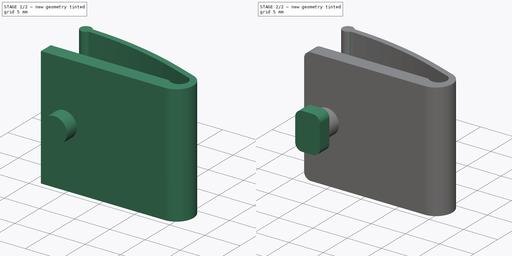
[diagram: build sequence overview — one tinted view per stage of 2, left to right]
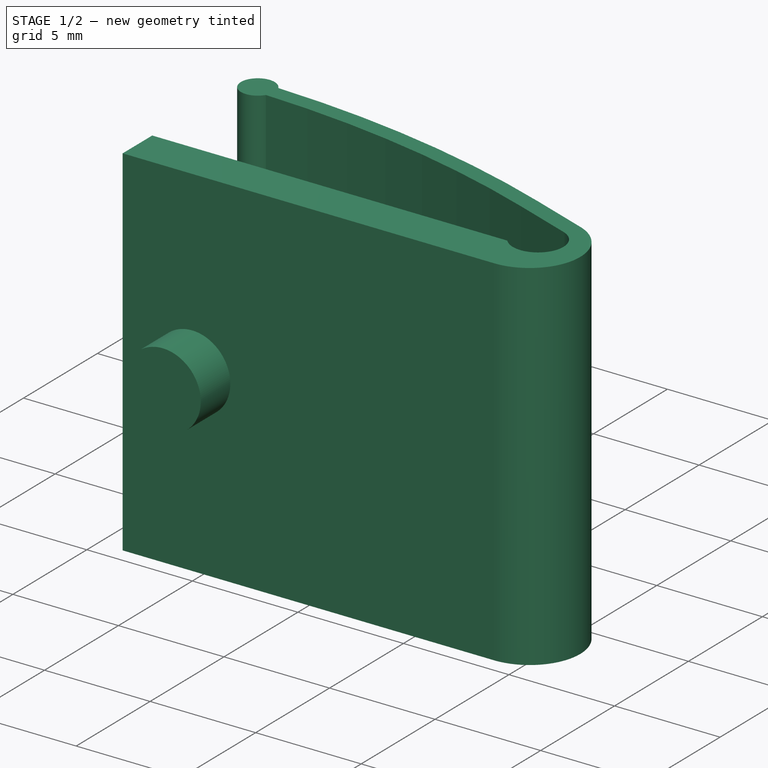
[diagram: stage 1 of 2 — iso view after this stage's code; geometry added in this stage tinted green]
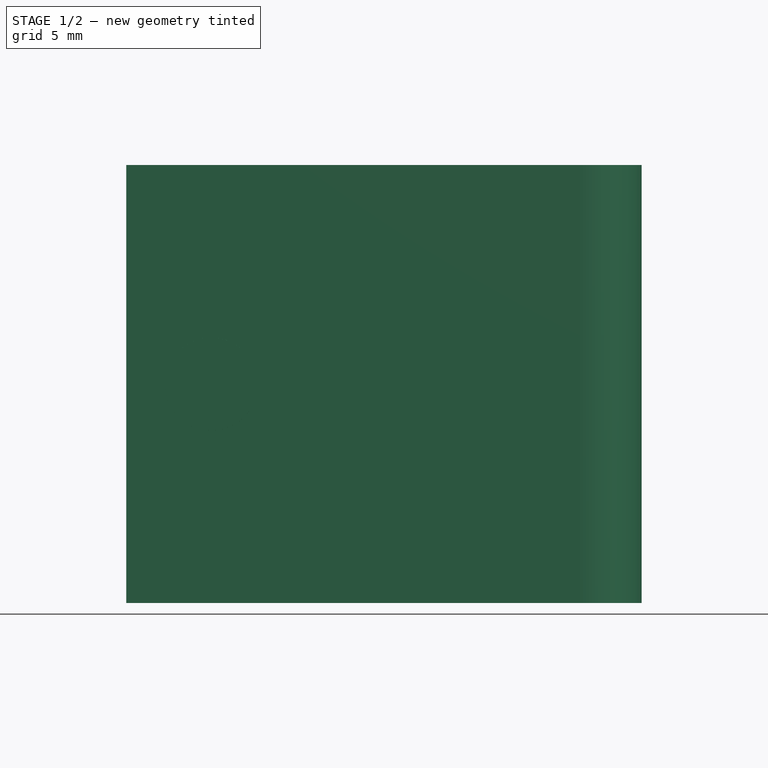
[diagram: stage 1 of 2 — front view after this stage's code; geometry added in this stage tinted green]
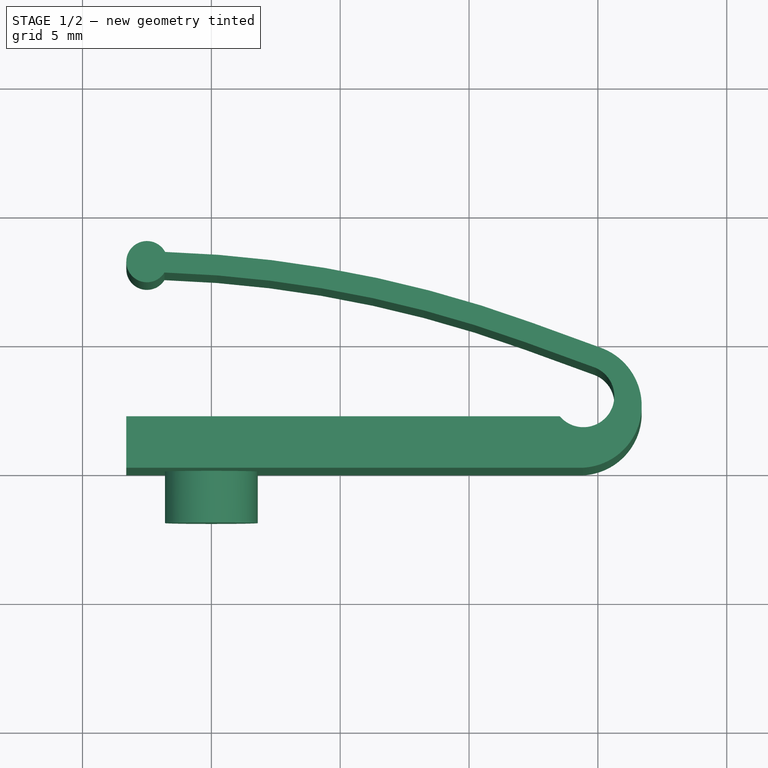
[diagram: stage 1 of 2 — top view after this stage's code; geometry added in this stage tinted green]
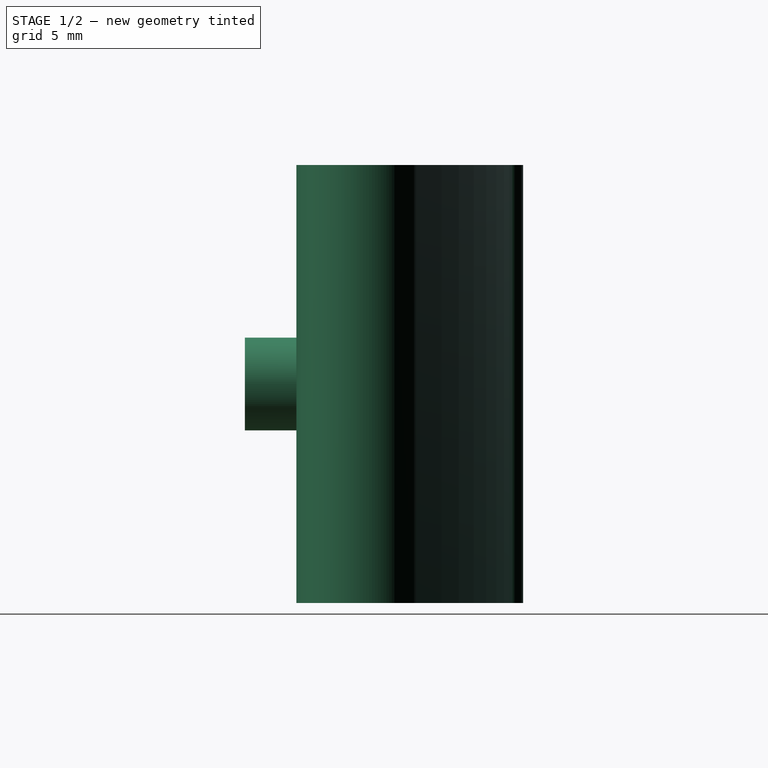
[diagram: stage 1 of 2 — right view after this stage's code; geometry added in this stage tinted green]
FCSTD DOCUMENT  (FreeCAD 0.20R28936 (Git))
Label: MosquitoNetLock
License: All rights reserved
LicenseURL: http://en.wikipedia.org/wiki/All_rights_reserved
objects: Sketcher::SketchObject×3, PartDesign::Pad×3, PartDesign::Fillet×1, PartDesign::Body×1
note: 12 computed .brp shape members not serialized (recipe doc carries the construction recipe); baked Part::Feature solids carry a one-line shape summary decoded from their .brp

FEATURE [Sketcher::SketchObject] Sketch
  FullyConstrained = true
  MapMode = 5
  Support = -> [XY_Plane]
  sketch-geometry (19):
    g0: LineSegment StartX=-3.3 StartY=2 StartZ=0 EndX=13.5214 EndY=2 EndZ=0
    g1: LineSegment StartX=-3.3 StartY=0 StartZ=0 EndX=-3.3 EndY=2 EndZ=0
    g2: ArcOfCircle CenterX=14.4368 CenterY=2.77588 CenterZ=0 NormalX=0 NormalY=0 NormalZ=1 AngleXU=0 Radius=1.2 StartAngle=3.84467 EndAngle=7.50492
    g3: LineSegment StartX=14.8472 StartY=3.90351 StartZ=0 EndX=12.1451 EndY=4.88701 EndZ=0
    g4: ArcOfCircle CenterX=14.3 CenterY=2.4 CenterZ=0 NormalX=0 NormalY=0 NormalZ=1 AngleXU=0 Radius=2.4 StartAngle=4.71239 EndAngle=7.50492
    g5: LineSegment StartX=15.1208 StartY=4.65526 StartZ=0 EndX=12.4186 EndY=5.63878 EndZ=0
    g6: LineSegment StartX=14.8472 StartY=3.90351 StartZ=0 EndX=15.1208 EndY=4.65526 EndZ=0
    g7: ArcOfCircle CenterX=-2.5 CenterY=8 CenterZ=0 NormalX=0 NormalY=0 NormalZ=1 AngleXU=0 Radius=0.8 StartAngle=0.49191 EndAngle=5.7279
    g8: LineSegment StartX=-2.5 StartY=8 StartZ=0 EndX=-1.80753 EndY=7.97805 EndZ=0
    g9: LineSegment StartX=-1.79485 StartY=8.37785 StartZ=0 EndX=-1.8202 EndY=7.57825 EndZ=0
    g10: LineSegment StartX=-3.3 StartY=2 StartZ=0 EndX=-3.3 EndY=8 EndZ=0
    g11: ArcOfCircle CenterX=-3.24582 CenterY=-37.3992 CenterZ=0 NormalX=0 NormalY=0 NormalZ=1 AngleXU=0 Radius=45.8 StartAngle=1.22173 EndAngle=1.53911
    g12: ArcOfCircle CenterX=-3.24582 CenterY=-37.3992 CenterZ=0 NormalX=0 NormalY=0 NormalZ=1 AngleXU=0 Radius=45 StartAngle=1.22173 EndAngle=1.53911
    g13: ArcOfCircle CenterX=-3.24582 CenterY=-37.3992 CenterZ=0 NormalX=0 NormalY=0 NormalZ=1 AngleXU=0 Radius=45.4 StartAngle=1.22173 EndAngle=1.53911
    g14: LineSegment StartX=14.3 StartY=2.4 StartZ=0 EndX=16.7 EndY=2.4 EndZ=0
    g15: LineSegment StartX=14.3 StartY=0 StartZ=0 EndX=0 EndY=0 EndZ=0
    g16: LineSegment StartX=0 StartY=0 StartZ=0 EndX=-3.3 EndY=0 EndZ=0
    g17: LineSegment StartX=14.3 StartY=2.4 StartZ=0 EndX=14.3 EndY=0 EndZ=0
    g18: LineSegment StartX=-2.5 StartY=8 StartZ=0 EndX=-1.79485 EndY=8.37785 EndZ=0
  constraints (50):
    c: Coincident(g16,g1)
    c: Coincident(g1,g0)
    c: Horizontal(g0)
    c: Vertical(g1)
    c: DistanceY(g1,g1) = 2
    c: Radius(g2) = 1.2
    c: Perpendicular(g3,g6)
    c: Distance(g6) = 0.8
    c: Coincident(g8,g7)
    c: Symmetric(g7,g7,g8)
    c: Coincident(g10,g0)
    c: Vertical(g10)
    c: Tangent(g10,g7) = 1.5708
    c: Coincident(g11,g7)
    c: Coincident(g12,g11)
    c: Coincident(g12,g7)
    c: Radius(g12) = 45
    c: Tangent(g3,g12) = -1.5708
    c: Tangent(g5,g11) = -1.5708
    c: Coincident(g9,g7)
    c: Coincident(g9,g7)
    c: Coincident(g13,g11)
    c: Coincident(g13,g8)
    c: Symmetric(g3,g5,g13)
    c: PointOnObject(g14,g4)
    c: Horizontal(g14)
    c: DistanceX(g16,g14) = 20
    c: Coincident(g15,g16)
    c: Horizontal(g15)
    c: Horizontal(g16)
    c: DistanceX(g16,g16) = 3.3
    c: Coincident(g15,g-1)  '__ANCHOR__'
    c: Coincident(g4,g15)
    c: Coincident(g4,g14)
    c: Coincident(g17,g4)
    c: Coincident(g17,g4)
    c: Vertical(g17)
    c: Coincident(g2,g0)
    c: Coincident(g6,g3)
    c: Coincident(g6,g2)
    c: Tangent(g5,g4) = -1.5708
    c: Coincident(g6,g4)
    c: Perpendicular(g13,g9)
    c: Tangent(g2,g3)
    c: DistanceY(g0,g10) = 6
    c: Angle(g3,g0) = 0.349066
    c: Radius(g4) = 2.4
    c: Coincident(g18,g7)
    c: Coincident(g18,g7)
    c: Equal(g18,g6)
FEATURE [Sketcher::SketchObject] Sketch001
  FullyConstrained = true
  MapMode = 5
  Placement = pos=(0,0,0) rot=(1,0,0;1.5708rad)
  Support = -> [XZ_Plane]
  sketch-geometry (1):
    g0: Circle CenterX=0 CenterY=0 CenterZ=0 NormalX=0 NormalY=0 NormalZ=1 AngleXU=0 Radius=1.8
  constraints (2):
    c: Coincident(g0,g-1)
    c: Radius(g0) = 1.8  'R'
FEATURE [PartDesign::Pad] Pad
  Direction = (0,0,1)
  Length = 17
  Length2 = 10
  Midplane = true
  Profile = -> Sketch
  ReferenceAxis = -> Sketch [N_Axis]
  Type = 0
FEATURE [PartDesign::Pad] Pad001
  BaseFeature = -> Pad
  Direction = (0,-1,-2e-16)
  Length = 2
  Length2 = 10
  Profile = -> Sketch001
  ReferenceAxis = -> Sketch001 [N_Axis]
  Refine = true
  Type = 0
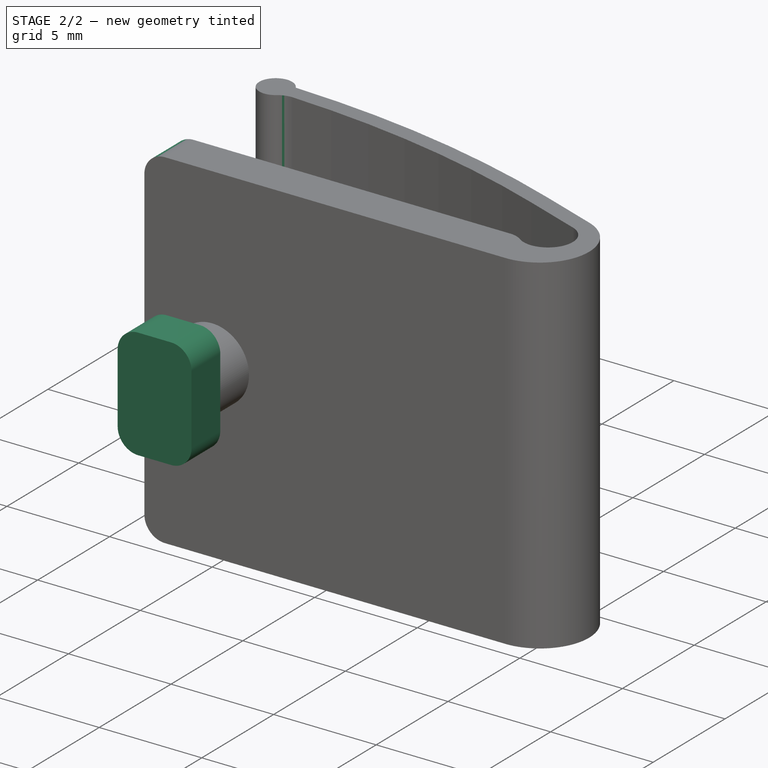
[diagram: stage 2 of 2 — iso view after this stage's code; geometry added in this stage tinted green]
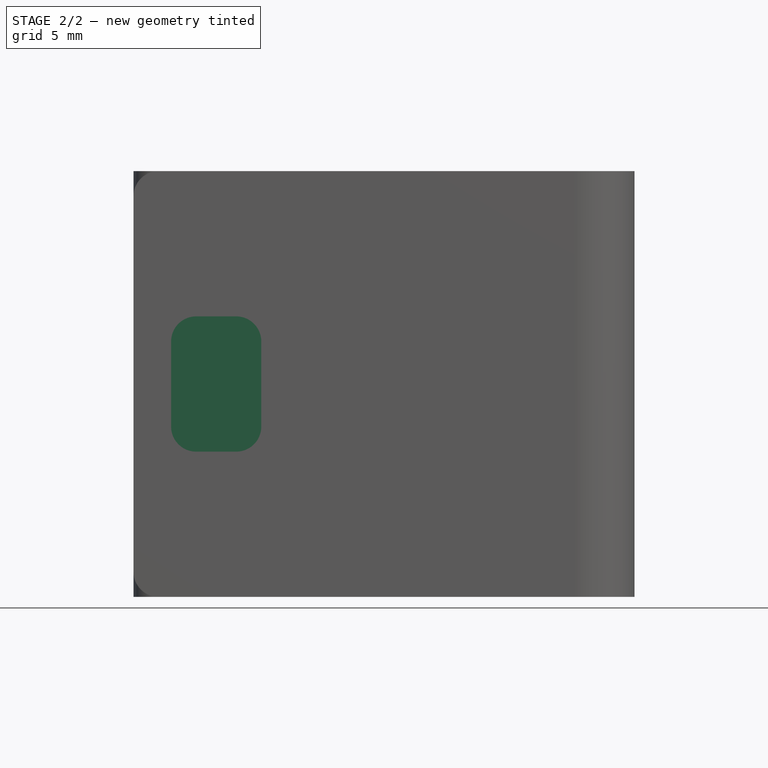
[diagram: stage 2 of 2 — front view after this stage's code; geometry added in this stage tinted green]
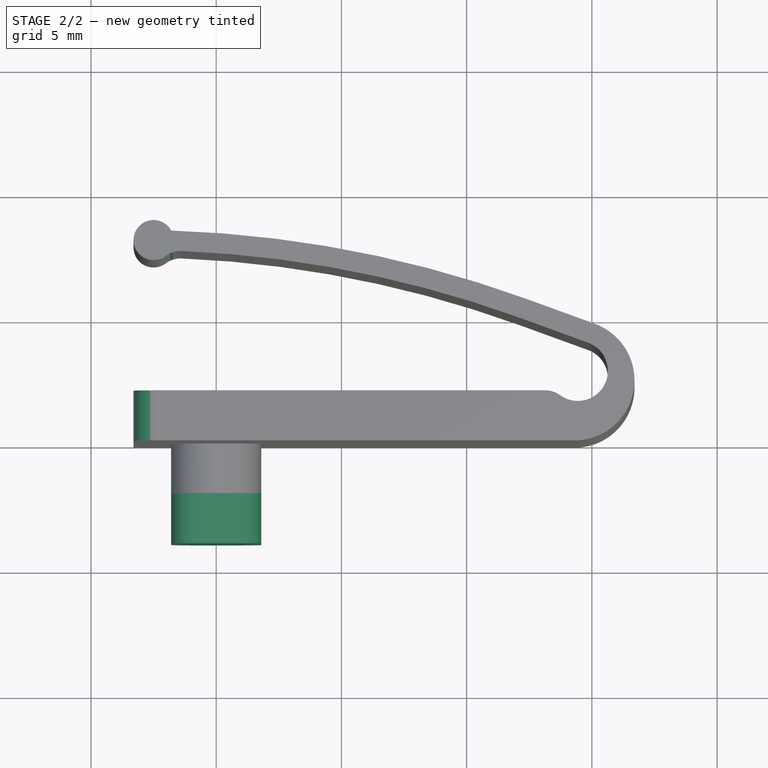
[diagram: stage 2 of 2 — top view after this stage's code; geometry added in this stage tinted green]
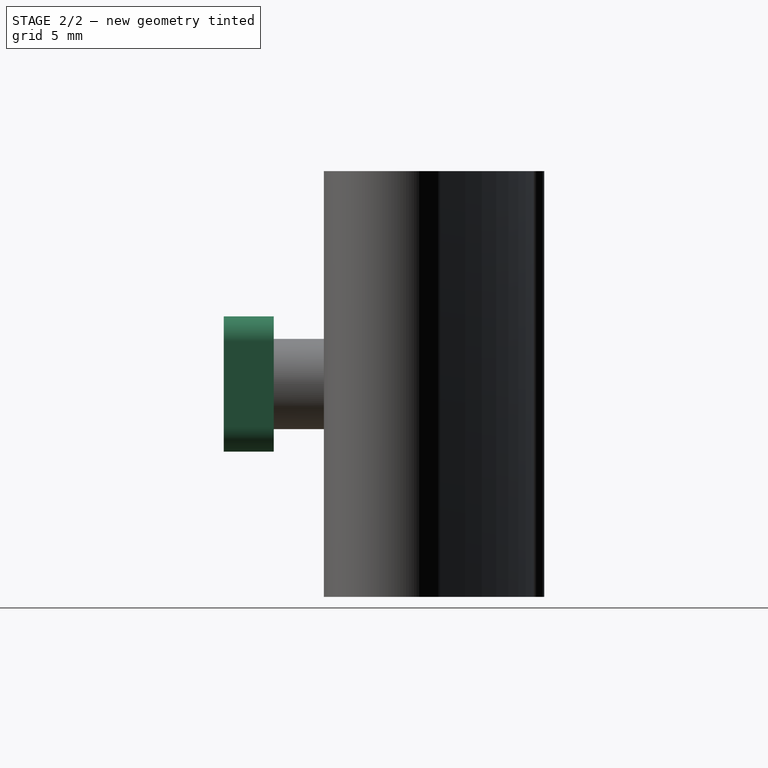
[diagram: stage 2 of 2 — right view after this stage's code; geometry added in this stage tinted green]
FEATURE [Sketcher::SketchObject] Sketch002
  AttachmentOffset = pos=(0,0,2) rot=(0,0,1;0rad)
  FullyConstrained = true
  MapMode = 5
  Placement = pos=(0,-2,-4e-16) rot=(1,0,0;1.5708rad)
  Support = -> [XZ_Plane]
  expr: .AttachmentOffset.Base.z = <<Pad001>>.Length
  expr: Constraints[10] = <<Sketch001>>.Constraints.R * 2
  expr: Constraints[9] = <<Sketch001>>.Constraints.R * 3
  sketch-geometry (4):
    g0: LineSegment StartX=-1.8 StartY=2.7 StartZ=0 EndX=-1.8 EndY=-2.7 EndZ=0
    g1: LineSegment StartX=1.8 StartY=-2.7 StartZ=0 EndX=1.8 EndY=2.7 EndZ=0
    g2: LineSegment StartX=-1.8 StartY=2.7 StartZ=0 EndX=1.8 EndY=2.7 EndZ=0
    g3: LineSegment StartX=-1.8 StartY=-2.7 StartZ=0 EndX=1.8 EndY=-2.7 EndZ=0
  constraints (11):
    c: Coincident(g2,g0)
    c: Horizontal(g2)
    c: Coincident(g3,g0)
    c: Coincident(g3,g1)
    c: Horizontal(g3)
    c: Coincident(g2,g1)
    c: Symmetric(g0,g1,g-1)
    c: Vertical(g1)
    c: Vertical(g0)
    c: DistanceY(g0,g0) = 5.4
    c: DistanceX(g2,g2) = 3.6
FEATURE [PartDesign::Pad] Pad002
  BaseFeature = -> Pad001
  Direction = (0,-1,-2e-16)
  Length = 2
  Length2 = 10
  Profile = -> Sketch002
  ReferenceAxis = -> Sketch002 [N_Axis]
  Type = 0
FEATURE [PartDesign::Fillet] Fillet
  Base = -> Pad002 [Edge2,Edge18,Edge19,Edge25,Edge43,Edge44,Edge48,Edge46]
  BaseFeature = -> Pad002
  Radius = 1
  SupportTransform = false
  UseAllEdges = false
FEATURE [PartDesign::Body] Body
  Group = -> [Sketch,Sketch001,Pad,Pad001,Sketch002,Pad002,Fillet]
  Origin = -> Origin
  Tip = -> Fillet
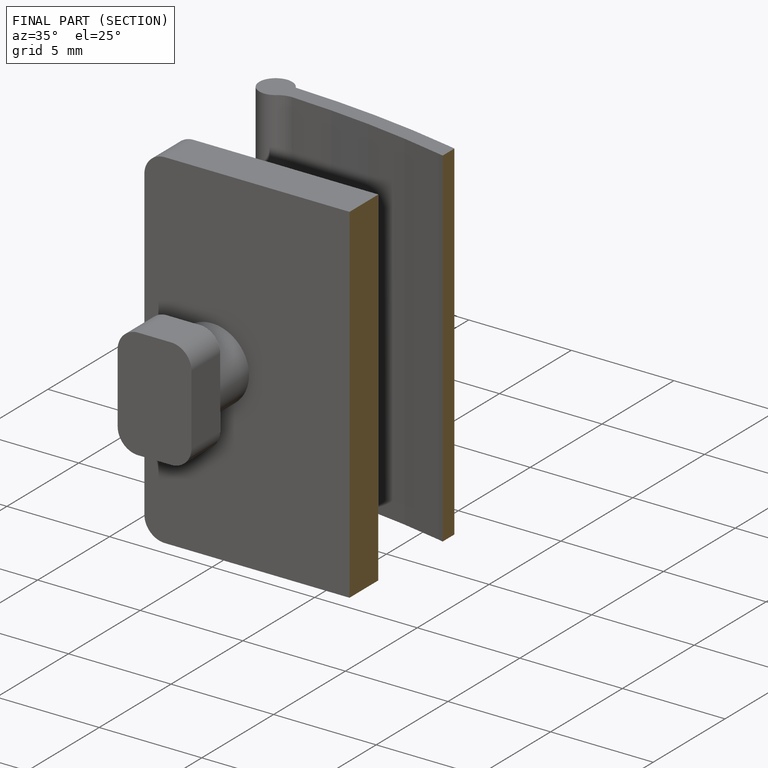
[diagram: finished part — half-section view (interior)]
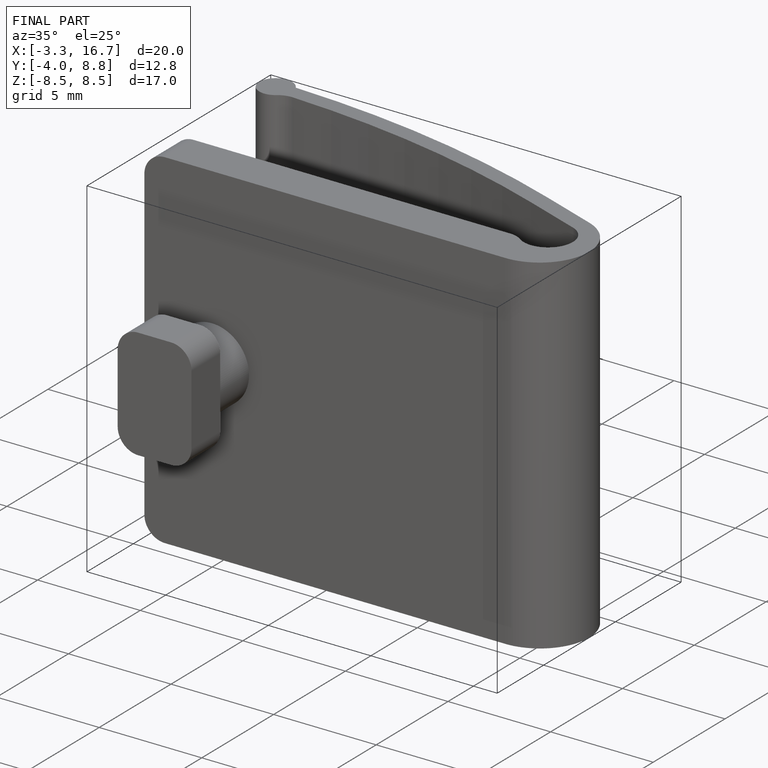
[diagram: finished part — iso view with bounding-box wireframe]
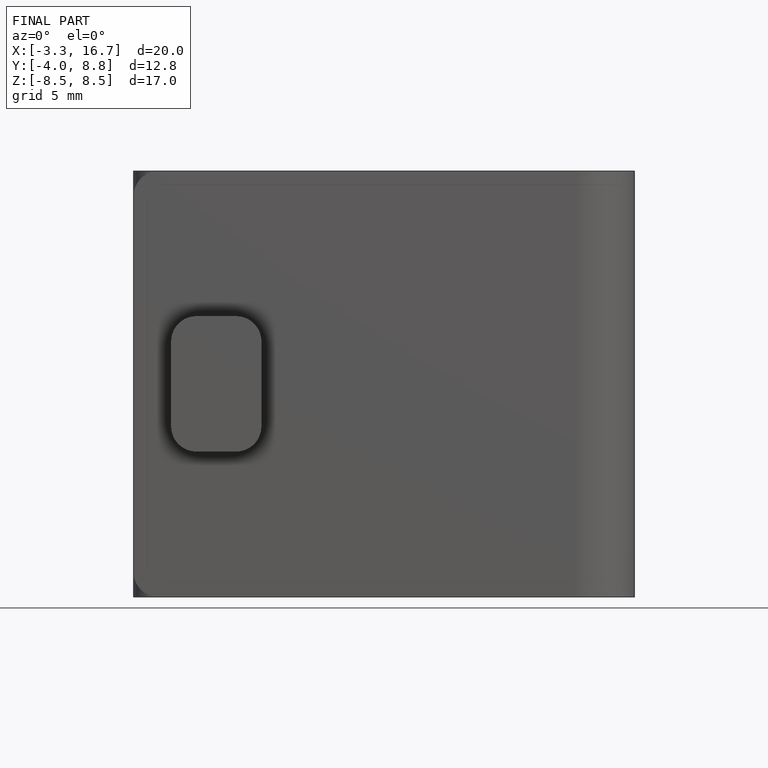
[diagram: finished part — front view with bounding-box wireframe]
